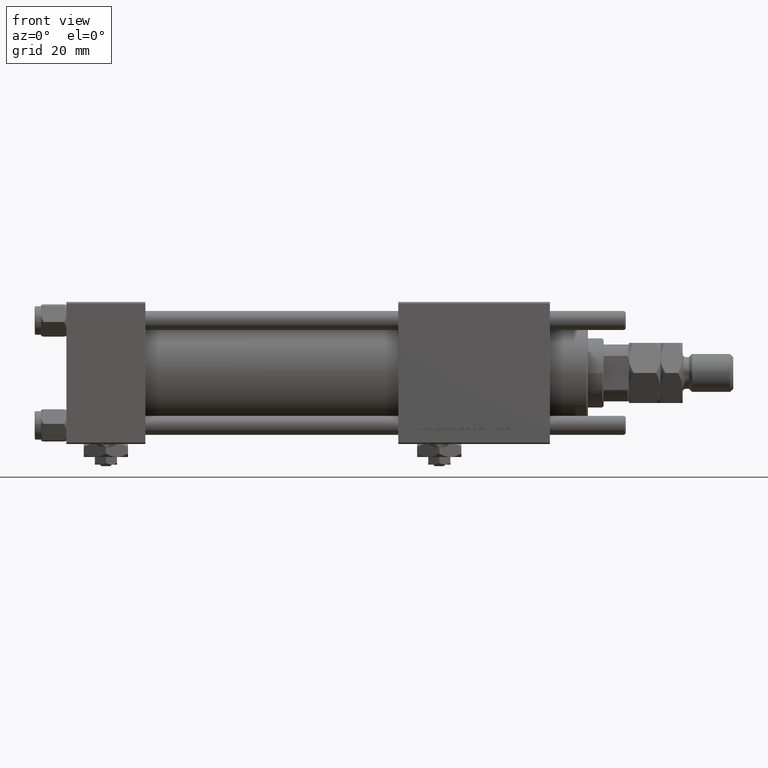
[diagram: clean part render]
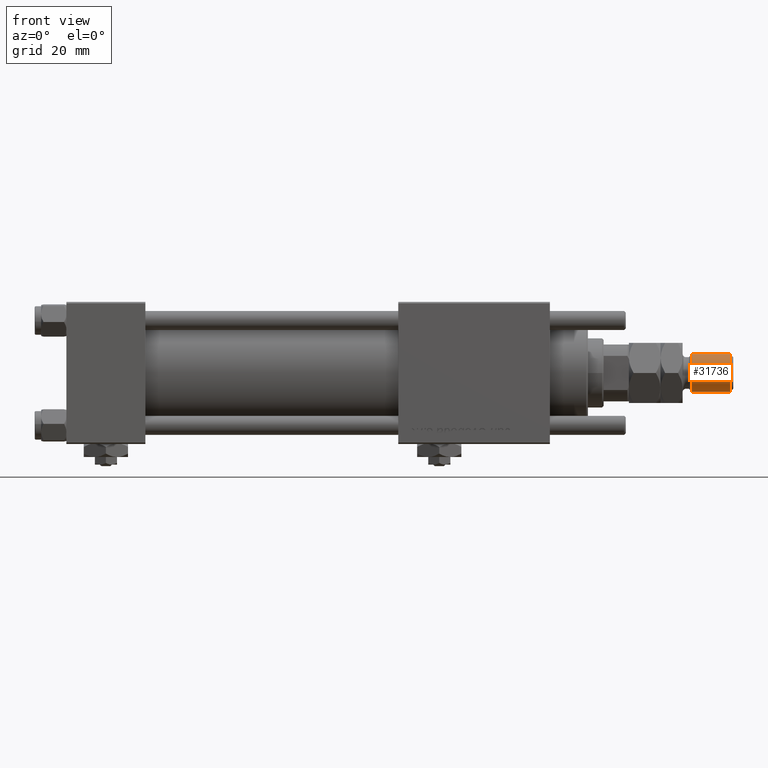
[diagram: same view with one face highlighted and labeled with its STEP entity id]
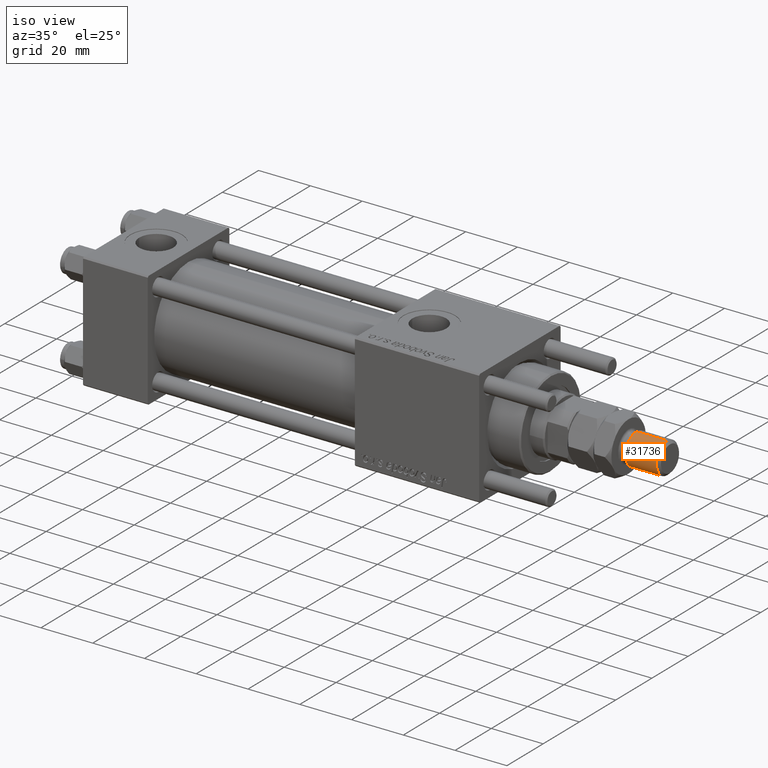
[diagram: same view with one face highlighted and labeled with its STEP entity id]
A machine part, front view. The second image highlights one B-rep face of the part: STEP entity #31736.
A second angle (iso view) of the same face is appended — the face is thin or edge-on in the first view.
In plain terms, the highlighted cylindrical surface (edge-blend (fillet) strip) has radius 6 mm, axis along (-1, -0, 0).
Its self-contained STEP definition (entity closure, byte-faithful):
#2898 = DIRECTION ( 'NONE',  ( 0.000000000000000000, 0.000000000000000000, -1.000000000000000000 ) ) ;
#6943 = VERTEX_POINT ( 'NONE', #46055 ) ;
#8406 = AXIS2_PLACEMENT_3D ( 'NONE', #35182, #31194, #17141 ) ;
#8864 = AXIS2_PLACEMENT_3D ( 'NONE', #17567, #36205, #27026 ) ;
#10130 = VERTEX_POINT ( 'NONE', #44862 ) ;
#10789 = DIRECTION ( 'NONE',  ( -0.000000000000000000, -0.000000000000000000, -1.000000000000000000 ) ) ;
#11265 = EDGE_CURVE ( 'NONE', #6943, #10130, #22498, .T. ) ;
#11790 = DIRECTION ( 'NONE',  ( 1.000000000000000000, 0.000000000000000000, 0.000000000000000000 ) ) ;
#14852 = VECTOR ( 'NONE', #16812, 1000.000000000000000 ) ;
#16549 = FACE_OUTER_BOUND ( 'NONE', #36712, .T. ) ;
#16812 = DIRECTION ( 'NONE',  ( -0.000000000000000000, -0.000000000000000000, -1.000000000000000000 ) ) ;
#17141 = DIRECTION ( 'NONE',  ( -1.000000000000000000, 0.000000000000000000, 0.000000000000000000 ) ) ;
#17185 = EDGE_CURVE ( 'NONE', #34224, #6943, #21132, .T. ) ;
#17567 = CARTESIAN_POINT ( 'NONE',  ( 0.000000000000000000, 0.000000000000000000, 20.00000000000000711 ) ) ;
#20149 = EDGE_CURVE ( 'NONE', #32666, #10130, #21379, .T. ) ;
#21132 = LINE ( 'NONE', #39798, #31488 ) ;
#21379 = LINE ( 'NONE', #40047, #14852 ) ;
#22498 = CIRCLE ( 'NONE', #8864, 6.000000000000000888 ) ;
#27026 = DIRECTION ( 'NONE',  ( 1.000000000000000000, 0.000000000000000000, 0.000000000000000000 ) ) ;
#30416 = CARTESIAN_POINT ( 'NONE',  ( 0.000000000000000000, 0.000000000000000000, 32.00000000000000000 ) ) ;
#31194 = DIRECTION ( 'NONE',  ( -0.000000000000000000, -0.000000000000000000, -1.000000000000000000 ) ) ;
#31488 = VECTOR ( 'NONE', #10789, 1000.000000000000000 ) ;
#31553 = CARTESIAN_POINT ( 'NONE',  ( -6.000000000000000888, 0.000000000000000000, 32.00000000000000000 ) ) ;
#31736 = ADVANCED_FACE ( 'NONE', ( #16549 ), #44670, .T. ) ;
#32666 = VERTEX_POINT ( 'NONE', #42317 ) ;
#34224 = VERTEX_POINT ( 'NONE', #31553 ) ;
#35182 = CARTESIAN_POINT ( 'NONE',  ( 0.000000000000000000, 0.000000000000000000, 33.00000000000000000 ) ) ;
#36205 = DIRECTION ( 'NONE',  ( -0.000000000000000000, -0.000000000000000000, 1.000000000000000000 ) ) ;
#36712 = EDGE_LOOP ( 'NONE', ( #59730, #41307, #60399, #37666 ) ) ;
#37666 = ORIENTED_EDGE ( 'NONE', *, *, #11265, .T. ) ;
#39798 = CARTESIAN_POINT ( 'NONE',  ( -6.000000000000000888, 0.000000000000000000, 33.00000000000000000 ) ) ;
#40047 = CARTESIAN_POINT ( 'NONE',  ( 6.000000000000000888, 7.347880794884120722E-16, 33.00000000000000000 ) ) ;
#41307 = ORIENTED_EDGE ( 'NONE', *, *, #58902, .T. ) ;
#42317 = CARTESIAN_POINT ( 'NONE',  ( 6.000000000000000888, 7.347880794884120722E-16, 32.00000000000000000 ) ) ;
#44670 = CYLINDRICAL_SURFACE ( 'NONE', #8406, 6.000000000000000888 ) ;
#44862 = CARTESIAN_POINT ( 'NONE',  ( 6.000000000000000888, 7.347880794884120722E-16, 20.00000000000000711 ) ) ;
#46055 = CARTESIAN_POINT ( 'NONE',  ( -6.000000000000000888, 0.000000000000000000, 20.00000000000000711 ) ) ;
#50595 = AXIS2_PLACEMENT_3D ( 'NONE', #30416, #2898, #11790 ) ;
#51562 = CIRCLE ( 'NONE', #50595, 6.000000000000000888 ) ;
#58902 = EDGE_CURVE ( 'NONE', #32666, #34224, #51562, .T. ) ;
#59730 = ORIENTED_EDGE ( 'NONE', *, *, #20149, .F. ) ;
#60399 = ORIENTED_EDGE ( 'NONE', *, *, #17185, .T. ) ;